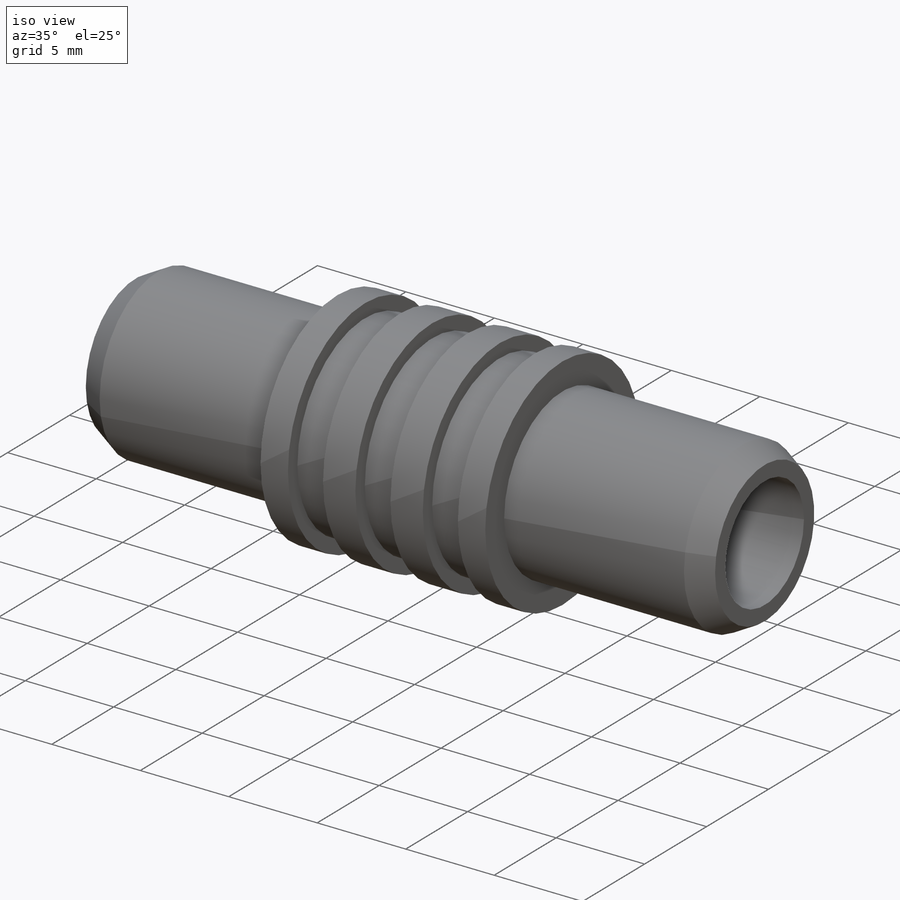
[diagram: iso view]
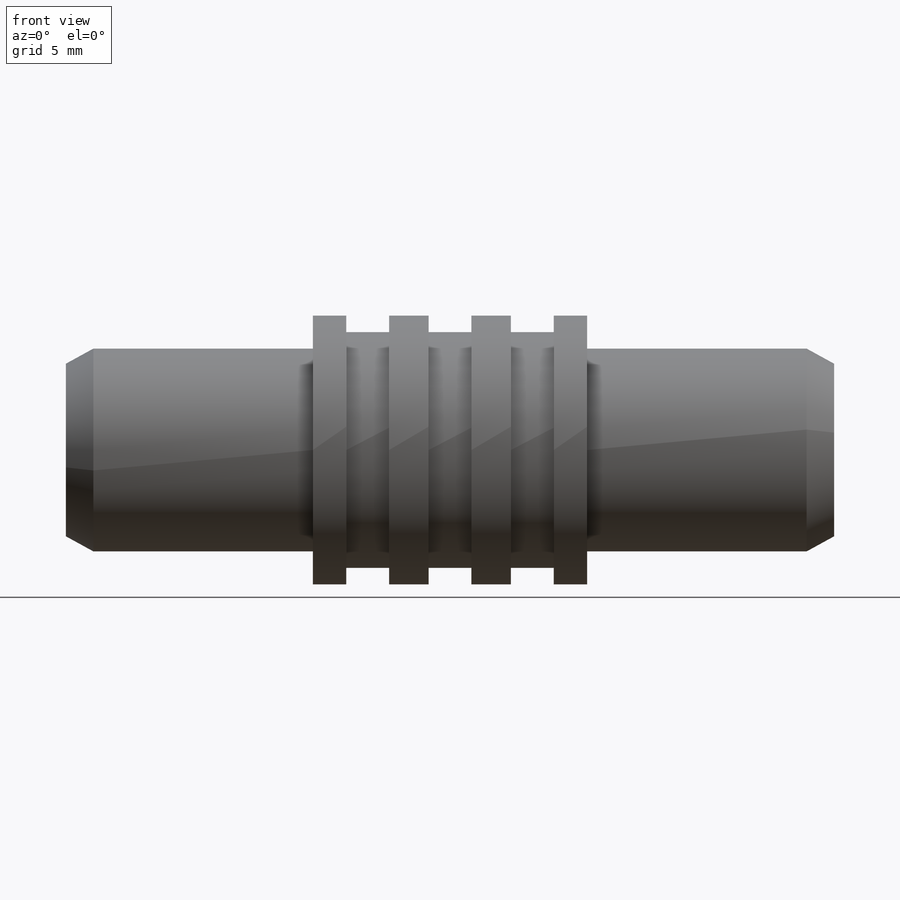
[diagram: front view]
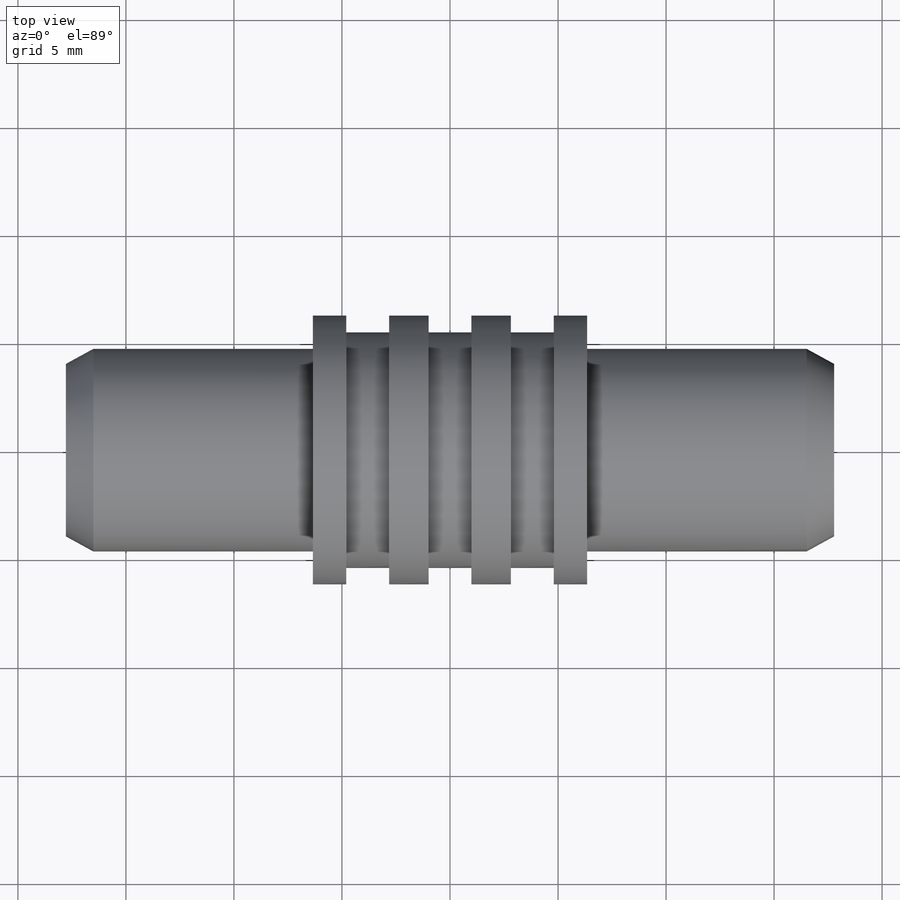
[diagram: top view]
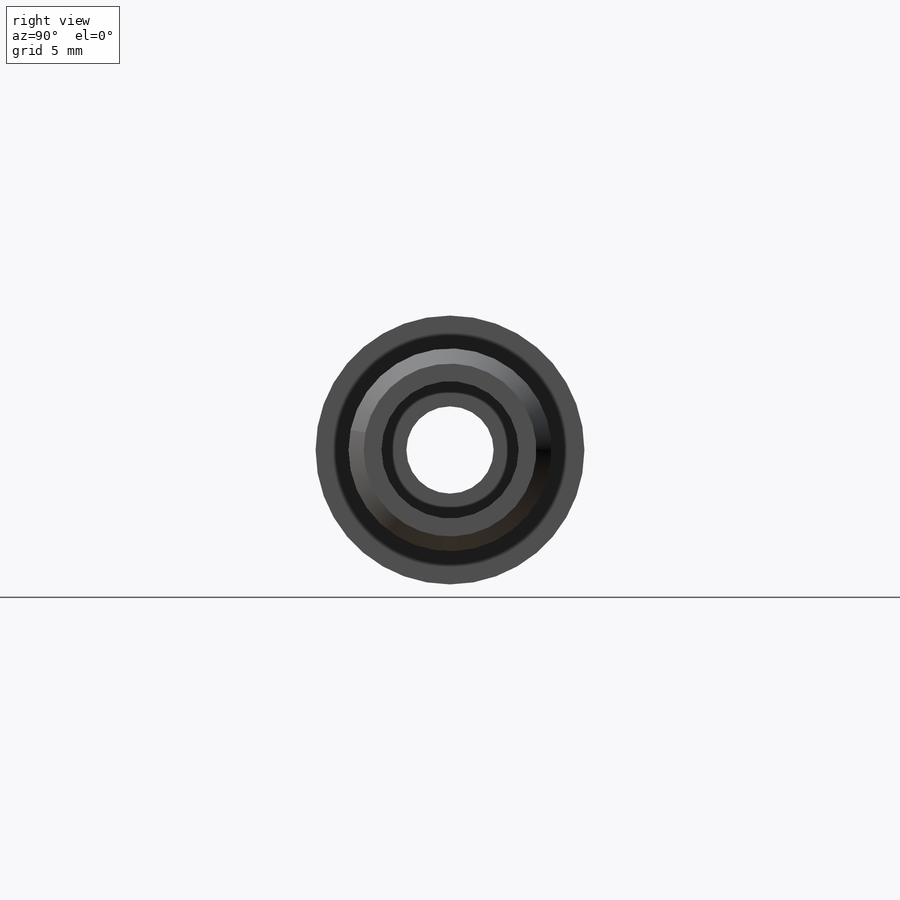
[diagram: right view]
SOLIDWORKS PART (.sldprt)
format: sldprt  version: not decoded by parser v0  size: 292,864 bytes
history: native  units: mm
features: sketch x3, material x1, revolve x1, mirror x1, cut_revolve x1, cut_extrude x1 (+13 scaffold rows collapsed)
feature tree (21):
  scaffold x13  (default folders/planes/origin — collapsed)
  material  "Polyetheretherketone (PEEK)"
  sketch  "Sketch1"  dims[c1.D1=4.0386mm c1.D2=28.0mm c1.D3=53.34mm c1.D4=6.604mm c1.D5=12.446mm c2.D2=4.572mm c2.D6=15.494mm c2.D7=9.398mm c2.D4=8.001mm c2.D8=8.382mm c2.D9=~1.597854mm c3.D9=59.0deg c3.D10=~3.571875mm c3.D11=4.572mm c3.D6=11.43mm c3.D2=1.27mm c3.D3=6.35mm]
  revolve  "Revolve1"  Angle=360deg
  mirror  "Mirror1"
  sketch  "Sketch2"  dims[c1.D1=~2.150491mm c1.D2=~1.980537mm c2.D1=10.922mm c2.D2=1.9812mm c2.D3=3.81mm c2.D4=3.81mm]
  cut_revolve  "Cut-Revolve1"  Angle=360deg
  sketch  "Sketch3"  dims[D1=6.35mm]
  cut_extrude  "Cut-Extrude1"  Depth=6.2992mm
decode coverage: 6 of 7 modeling features carry decoded parameters
note: ~ marks probable driven/reference dimensions
note: suppression state not decoded; provenance and decode notes live in map.json
